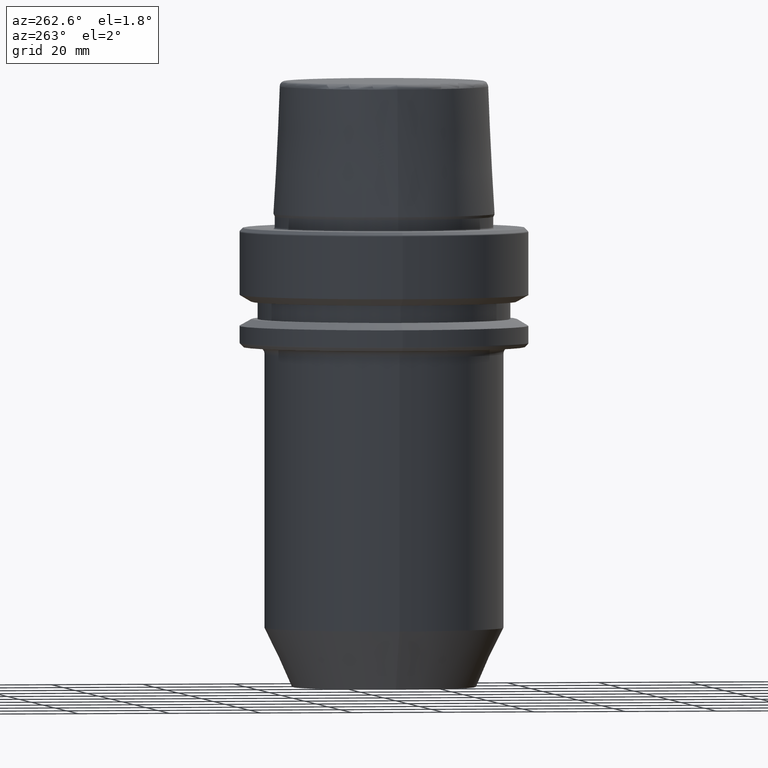
[diagram: clean part render]
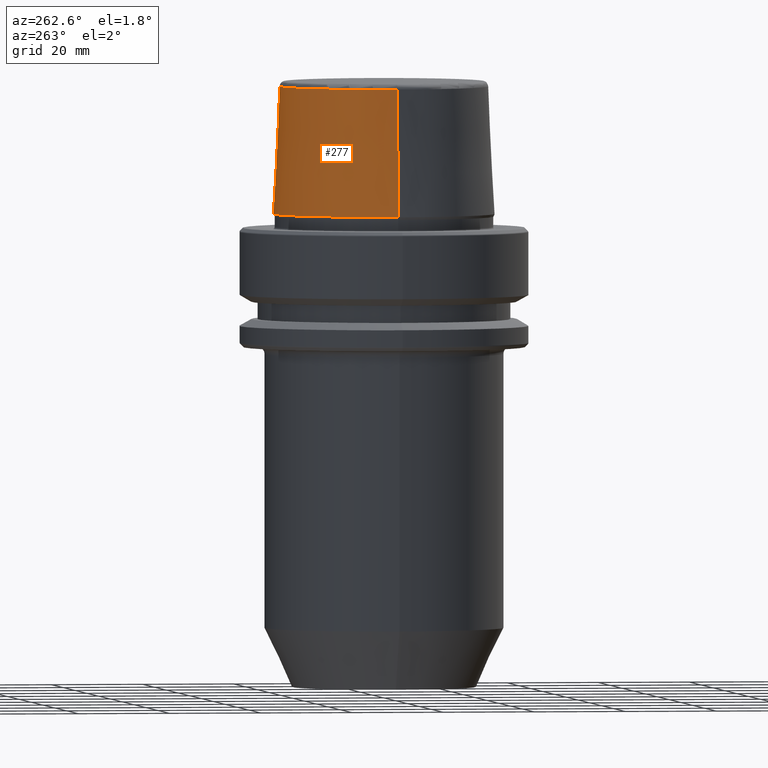
[diagram: same view with one face highlighted and labeled with its STEP entity id]
A machine part, auxiliary view. The second image highlights one B-rep face of the part: STEP entity #277.
In plain terms, the highlighted conical surface has half-angle 2.868 deg.
Its self-contained STEP definition (entity closure, byte-faithful):
#23 = CARTESIAN_POINT ( 'NONE',  ( 0.0000000000000000000, 0.0000000000000000000, 3.000000000000002700 ) ) ;
#48 = EDGE_LOOP ( 'NONE', ( #697, #958, #945, #164 ) ) ;
#49 = AXIS2_PLACEMENT_3D ( 'NONE', #23, #1207, #892 ) ;
#77 = VERTEX_POINT ( 'NONE', #677 ) ;
#89 = CARTESIAN_POINT ( 'NONE',  ( 24.17032625081241900, 2.960011267740467600E-015, 3.000000000000002700 ) ) ;
#161 = DIRECTION ( 'NONE',  ( 1.000000000000000000, 0.0000000000000000000, 0.0000000000000000000 ) ) ;
#164 = ORIENTED_EDGE ( 'NONE', *, *, #217, .F. ) ;
#172 = CARTESIAN_POINT ( 'NONE',  ( -24.17032625081241900, 0.0000000000000000000, 3.000000000000002700 ) ) ;
#217 = EDGE_CURVE ( 'NONE', #699, #766, #1249, .T. ) ;
#266 = CIRCLE ( 'NONE', #707, 22.77957961851797100 ) ;
#277 = ADVANCED_FACE ( 'NONE', ( #802 ), #745, .T. ) ;
#328 = VECTOR ( 'NONE', #1115, 1000.000000000000200 ) ;
#376 = EDGE_CURVE ( 'NONE', #503, #77, #588, .T. ) ;
#454 = EDGE_CURVE ( 'NONE', #77, #766, #1053, .T. ) ;
#482 = VECTOR ( 'NONE', #542, 1000.000000000000200 ) ;
#503 = VERTEX_POINT ( 'NONE', #1102 ) ;
#509 = CARTESIAN_POINT ( 'NONE',  ( 0.0000000000000000000, 0.0000000000000000000, 30.76004333261571900 ) ) ;
#542 = DIRECTION ( 'NONE',  ( 0.05003611051310812000, 6.127656258166108900E-018, -0.9987474093306675200 ) ) ;
#588 = LINE ( 'NONE', #89, #482 ) ;
#677 = CARTESIAN_POINT ( 'NONE',  ( 24.17032625081241900, 0.0000000000000000000, 3.000000000000002700 ) ) ;
#697 = ORIENTED_EDGE ( 'NONE', *, *, #708, .F. ) ;
#699 = VERTEX_POINT ( 'NONE', #868 ) ;
#707 = AXIS2_PLACEMENT_3D ( 'NONE', #509, #1097, #816 ) ;
#708 = EDGE_CURVE ( 'NONE', #503, #699, #266, .T. ) ;
#745 = CONICAL_SURFACE ( 'NONE', #49, 24.17032625081241900, 0.05005701257456005000 ) ;
#766 = VERTEX_POINT ( 'NONE', #838 ) ;
#802 = FACE_OUTER_BOUND ( 'NONE', #48, .T. ) ;
#816 = DIRECTION ( 'NONE',  ( 1.000000000000000000, 0.0000000000000000000, 0.0000000000000000000 ) ) ;
#838 = CARTESIAN_POINT ( 'NONE',  ( -24.17032625081241900, 2.960011267740467600E-015, 3.000000000000002700 ) ) ;
#849 = DIRECTION ( 'NONE',  ( -0.0000000000000000000, -0.0000000000000000000, 1.000000000000000000 ) ) ;
#868 = CARTESIAN_POINT ( 'NONE',  ( -22.77957961851797100, 0.0000000000000000000, 30.76004333261571900 ) ) ;
#892 = DIRECTION ( 'NONE',  ( -1.000000000000000000, 0.0000000000000000000, 0.0000000000000000000 ) ) ;
#945 = ORIENTED_EDGE ( 'NONE', *, *, #454, .T. ) ;
#958 = ORIENTED_EDGE ( 'NONE', *, *, #376, .T. ) ;
#1022 = CARTESIAN_POINT ( 'NONE',  ( 0.0000000000000000000, 0.0000000000000000000, 3.000000000000002700 ) ) ;
#1053 = CIRCLE ( 'NONE', #1114, 24.17032625081241900 ) ;
#1097 = DIRECTION ( 'NONE',  ( -0.0000000000000000000, -0.0000000000000000000, 1.000000000000000000 ) ) ;
#1102 = CARTESIAN_POINT ( 'NONE',  ( 22.77957961851797100, 2.874852597157249900E-015, 30.76004333261571900 ) ) ;
#1114 = AXIS2_PLACEMENT_3D ( 'NONE', #1022, #849, #161 ) ;
#1115 = DIRECTION ( 'NONE',  ( -0.05003611051310812000, 0.0000000000000000000, -0.9987474093306675200 ) ) ;
#1207 = DIRECTION ( 'NONE',  ( 0.0000000000000000000, 0.0000000000000000000, -1.000000000000000000 ) ) ;
#1249 = LINE ( 'NONE', #172, #328 ) ;